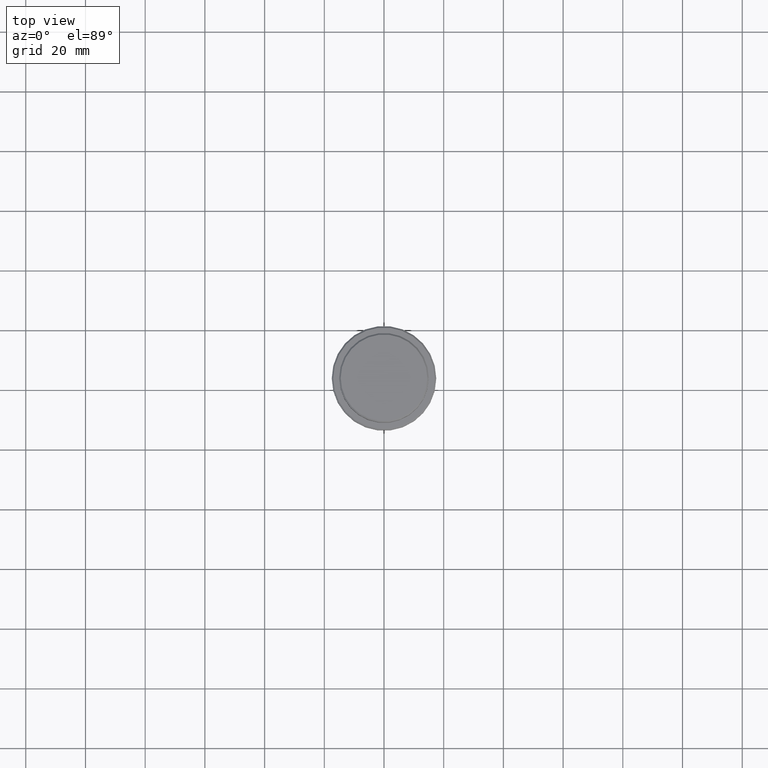
[diagram: clean part render]
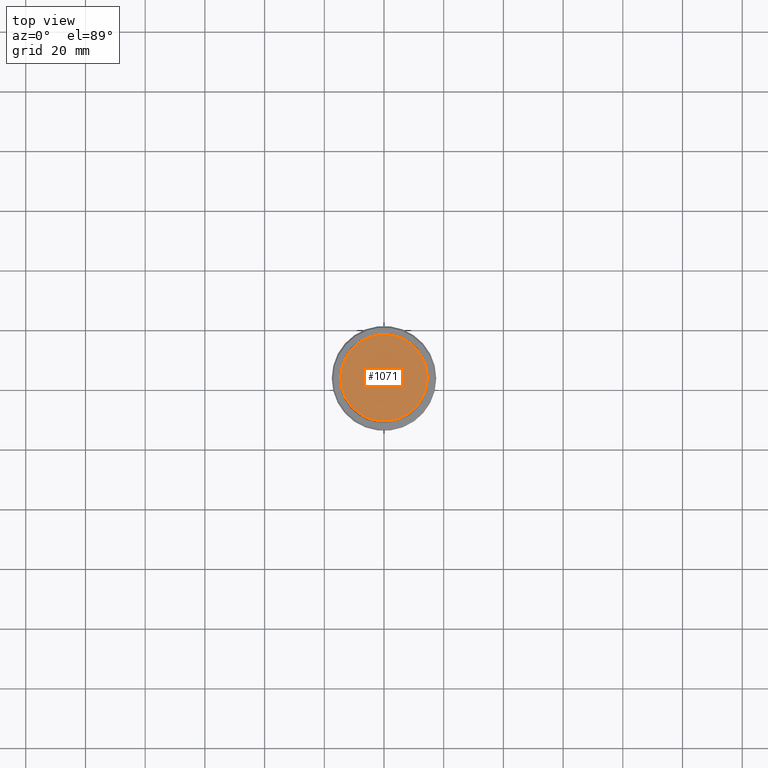
[diagram: same view with one face highlighted and labeled with its STEP entity id]
A machine part, top view. The second image highlights one B-rep face of the part: STEP entity #1071.
In plain terms, the highlighted planar face has unit normal (0, -0, 1).
Its self-contained STEP definition (entity closure, byte-faithful):
#120 = CARTESIAN_POINT ( 'NONE',  ( 0.000000000000000000, 0.000000000000000000, 0.000000000000000000 ) ) ;
#127 = ORIENTED_EDGE ( 'NONE', *, *, #1221, .T. ) ;
#154 = CIRCLE ( 'NONE', #460, 14.50000000000003908 ) ;
#271 = CIRCLE ( 'NONE', #1362, 14.50000000000003908 ) ;
#310 = FACE_OUTER_BOUND ( 'NONE', #1366, .T. ) ;
#320 = DIRECTION ( 'NONE',  ( 1.000000000000000000, 0.000000000000000000, 0.000000000000000000 ) ) ;
#460 = AXIS2_PLACEMENT_3D ( 'NONE', #809, #512, #945 ) ;
#475 = VERTEX_POINT ( 'NONE', #1360 ) ;
#512 = DIRECTION ( 'NONE',  ( -0.000000000000000000, -0.000000000000000000, 1.000000000000000000 ) ) ;
#669 = DIRECTION ( 'NONE',  ( 1.000000000000000000, 0.000000000000000000, 0.000000000000000000 ) ) ;
#748 = CARTESIAN_POINT ( 'NONE',  ( 0.000000000000000000, 0.000000000000000000, 0.000000000000000000 ) ) ;
#788 = DIRECTION ( 'NONE',  ( -0.000000000000000000, -0.000000000000000000, 1.000000000000000000 ) ) ;
#802 = CARTESIAN_POINT ( 'NONE',  ( 14.50000000000003908, 1.806354028742348168E-15, 0.000000000000000000 ) ) ;
#809 = CARTESIAN_POINT ( 'NONE',  ( 0.000000000000000000, 0.000000000000000000, 0.000000000000000000 ) ) ;
#945 = DIRECTION ( 'NONE',  ( 1.000000000000000000, 0.000000000000000000, 0.000000000000000000 ) ) ;
#964 = PLANE ( 'NONE',  #1293 ) ;
#980 = EDGE_CURVE ( 'NONE', #1373, #475, #154, .T. ) ;
#1071 = ADVANCED_FACE ( 'NONE', ( #310 ), #964, .T. ) ;
#1092 = ORIENTED_EDGE ( 'NONE', *, *, #980, .T. ) ;
#1221 = EDGE_CURVE ( 'NONE', #475, #1373, #271, .T. ) ;
#1293 = AXIS2_PLACEMENT_3D ( 'NONE', #748, #1411, #320 ) ;
#1360 = CARTESIAN_POINT ( 'NONE',  ( -14.50000000000003908, 0.000000000000000000, 0.000000000000000000 ) ) ;
#1362 = AXIS2_PLACEMENT_3D ( 'NONE', #120, #788, #669 ) ;
#1366 = EDGE_LOOP ( 'NONE', ( #127, #1092 ) ) ;
#1373 = VERTEX_POINT ( 'NONE', #802 ) ;
#1411 = DIRECTION ( 'NONE',  ( 0.000000000000000000, -0.000000000000000000, 1.000000000000000000 ) ) ;